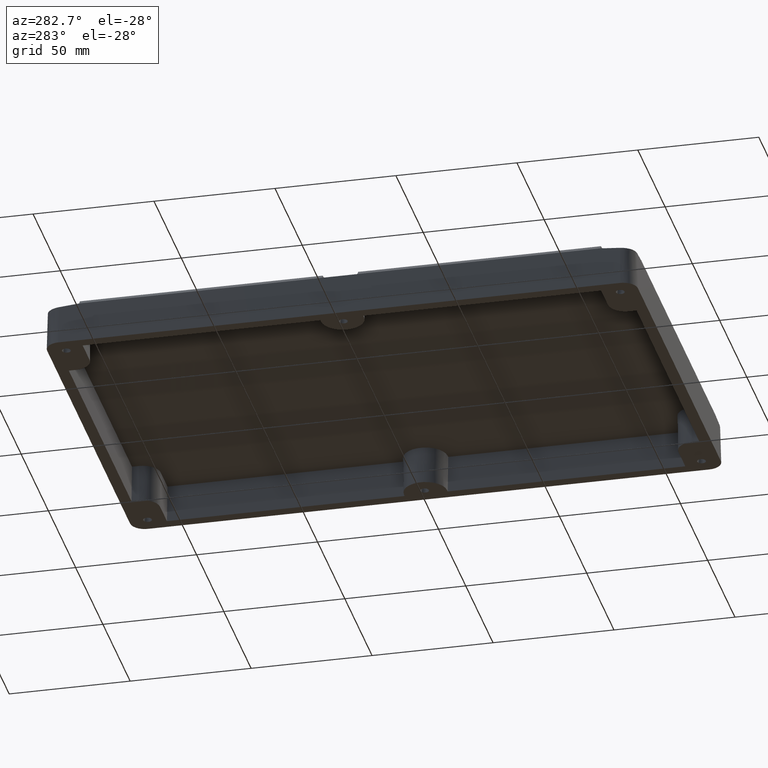
[diagram: clean part render]
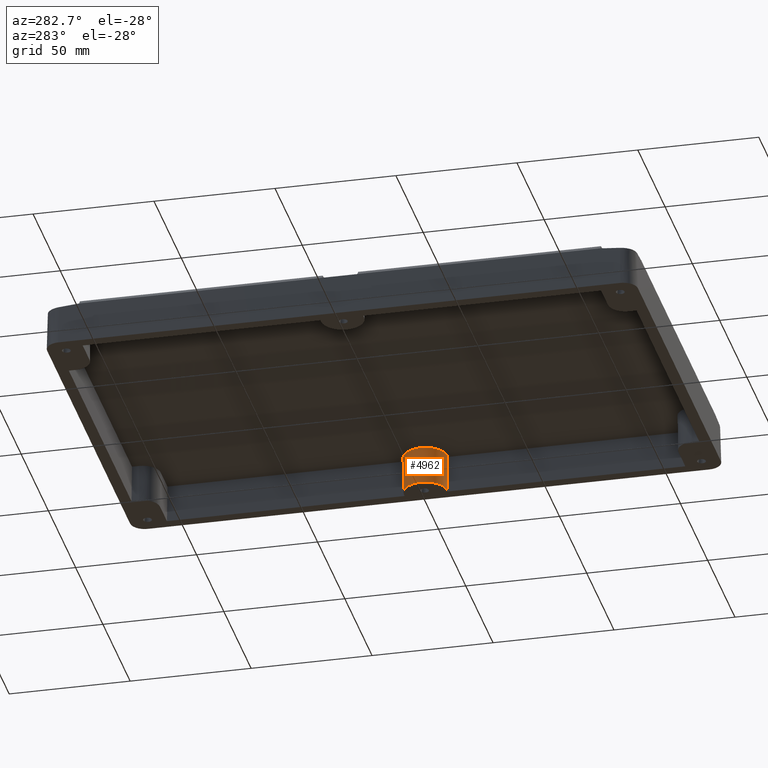
[diagram: same view with one face highlighted and labeled with its STEP entity id]
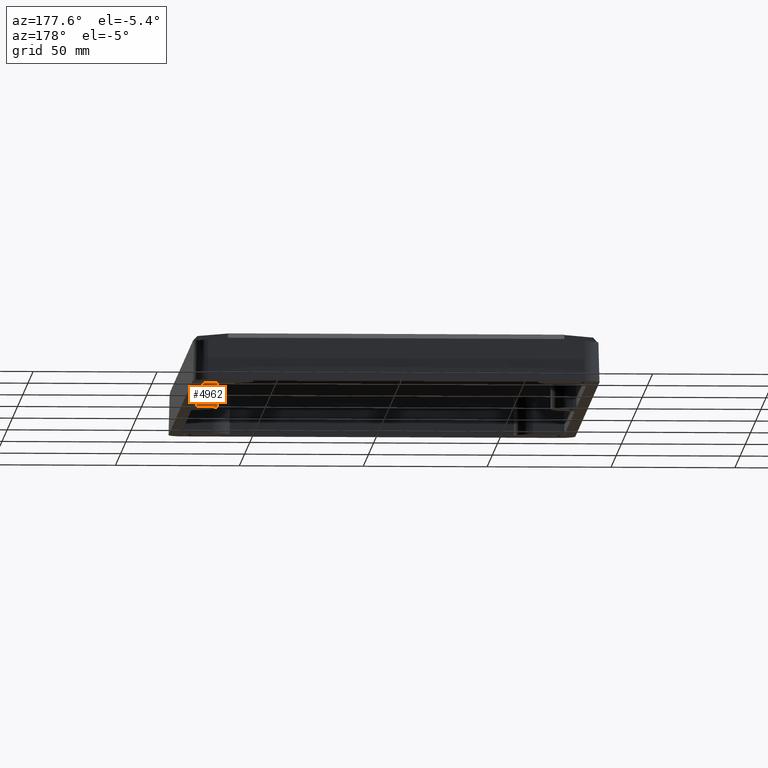
[diagram: same view with one face highlighted and labeled with its STEP entity id]
A machine part, auxiliary view. The second image highlights one B-rep face of the part: STEP entity #4962.
A second angle (auxiliary view) of the same face is appended — the face is thin or edge-on in the first view.
In plain terms, the highlighted conical surface has half-angle 1 deg.
Its self-contained STEP definition (entity closure, byte-faithful):
#8 = LINE ( 'NONE', #6173, #2547 ) ;
#117 = VERTEX_POINT ( 'NONE', #4279 ) ;
#178 = ORIENTED_EDGE ( 'NONE', *, *, #1219, .F. ) ;
#494 = VECTOR ( 'NONE', #5326, 1000.000000000000200 ) ;
#641 = EDGE_CURVE ( 'NONE', #117, #4026, #1775, .T. ) ;
#692 = DIRECTION ( 'NONE',  ( 1.000000000000000000, 0.0000000000000000000, 0.0000000000000000000 ) ) ;
#744 = ORIENTED_EDGE ( 'NONE', *, *, #4517, .T. ) ;
#820 = CIRCLE ( 'NONE', #3424, 9.172119272736631900 ) ;
#841 = CARTESIAN_POINT ( 'NONE',  ( 76.12562706999999300, 1.329131536532882200E-016, 15.59999999999999800 ) ) ;
#985 = DIRECTION ( 'NONE',  ( 0.0000000000000000000, -0.01745240643728355000, -0.9998476951563911600 ) ) ;
#989 = CARTESIAN_POINT ( 'NONE',  ( 76.12562706999999300, 8.899820259856435100, -4.336808689942017700E-016 ) ) ;
#1219 = EDGE_CURVE ( 'NONE', #4026, #5963, #5132, .T. ) ;
#1320 = CONICAL_SURFACE ( 'NONE', #4702, 8.864910130000000200, 0.01745329251994333400 ) ;
#1325 = DIRECTION ( 'NONE',  ( 1.000000000000000000, 0.0000000000000000000, 0.0000000000000000000 ) ) ;
#1455 = FACE_OUTER_BOUND ( 'NONE', #5930, .T. ) ;
#1597 = DIRECTION ( 'NONE',  ( -0.0000000000000000000, -0.0000000000000000000, 1.000000000000000000 ) ) ;
#1619 = CARTESIAN_POINT ( 'NONE',  ( 76.12562706999999300, 1.329131536532882200E-016, -2.000000000000000000 ) ) ;
#1682 = DIRECTION ( 'NONE',  ( 0.0000000000000000000, 0.0000000000000000000, -1.000000000000000000 ) ) ;
#1775 = LINE ( 'NONE', #4835, #494 ) ;
#1937 = VERTEX_POINT ( 'NONE', #2796 ) ;
#2547 = VECTOR ( 'NONE', #985, 1000.000000000000200 ) ;
#2731 = EDGE_CURVE ( 'NONE', #117, #1937, #820, .T. ) ;
#2796 = CARTESIAN_POINT ( 'NONE',  ( 76.12562706999999300, 9.172119272736631900, 15.59999999999999400 ) ) ;
#2803 = CARTESIAN_POINT ( 'NONE',  ( 76.12562706999999300, -8.899820259856435100, 0.0000000000000000000 ) ) ;
#3424 = AXIS2_PLACEMENT_3D ( 'NONE', #841, #4127, #1325 ) ;
#4026 = VERTEX_POINT ( 'NONE', #2803 ) ;
#4127 = DIRECTION ( 'NONE',  ( -0.0000000000000000000, -0.0000000000000000000, -1.000000000000000000 ) ) ;
#4279 = CARTESIAN_POINT ( 'NONE',  ( 76.12562706999999300, -9.172119272736631900, 15.59999999999999800 ) ) ;
#4499 = CARTESIAN_POINT ( 'NONE',  ( 76.12562706999999300, 1.329131536532882200E-016, 0.0000000000000000000 ) ) ;
#4517 = EDGE_CURVE ( 'NONE', #1937, #5963, #8, .T. ) ;
#4702 = AXIS2_PLACEMENT_3D ( 'NONE', #1619, #1597, #692 ) ;
#4835 = CARTESIAN_POINT ( 'NONE',  ( 76.12562706999999300, -8.864910130000000200, -2.000000000000000000 ) ) ;
#4959 = DIRECTION ( 'NONE',  ( -1.000000000000000000, 0.0000000000000000000, 0.0000000000000000000 ) ) ;
#4962 = ADVANCED_FACE ( 'NONE', ( #1455 ), #1320, .T. ) ;
#5132 = CIRCLE ( 'NONE', #5372, 8.899820259856431500 ) ;
#5326 = DIRECTION ( 'NONE',  ( -0.0000000000000000000, 0.01745240643728355000, -0.9998476951563911600 ) ) ;
#5372 = AXIS2_PLACEMENT_3D ( 'NONE', #4499, #1682, #4959 ) ;
#5412 = ORIENTED_EDGE ( 'NONE', *, *, #2731, .T. ) ;
#5753 = ORIENTED_EDGE ( 'NONE', *, *, #641, .F. ) ;
#5930 = EDGE_LOOP ( 'NONE', ( #5753, #5412, #744, #178 ) ) ;
#5963 = VERTEX_POINT ( 'NONE', #989 ) ;
#6173 = CARTESIAN_POINT ( 'NONE',  ( 76.12562706999999300, 8.864910130000000200, -2.000000000000000000 ) ) ;